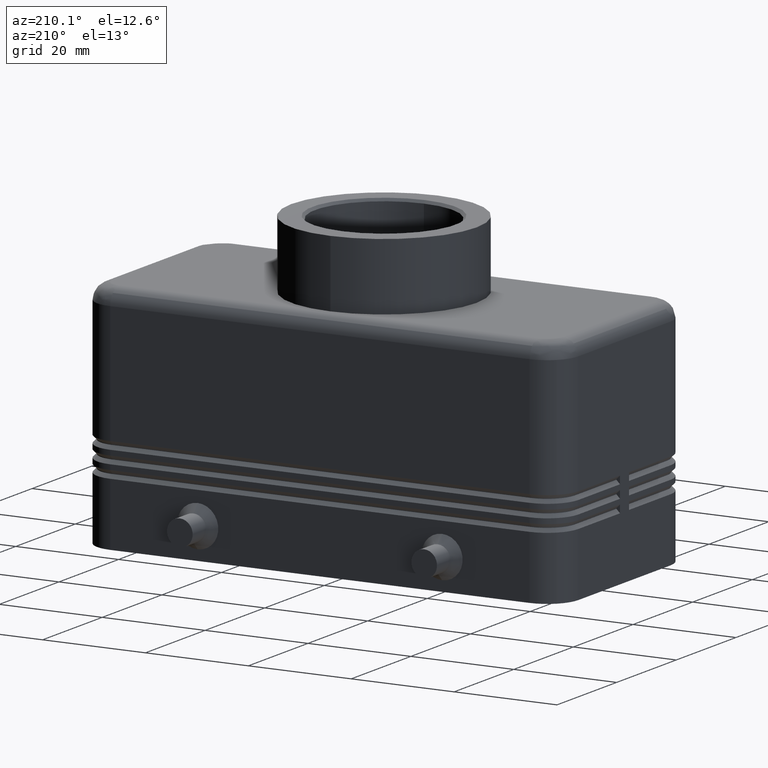
[diagram: clean part render]
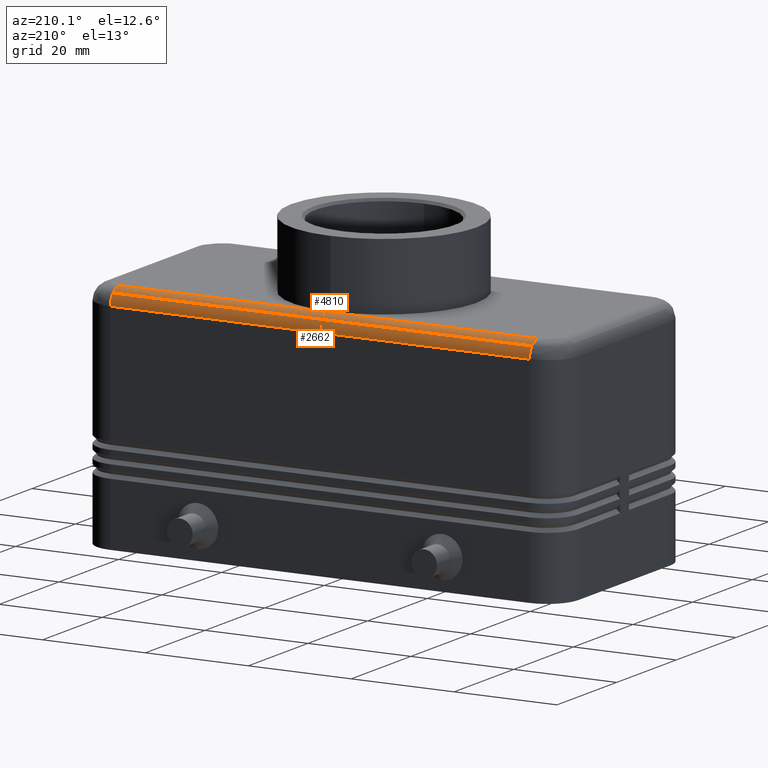
[diagram: same view with one multi-face feature highlighted, each face labeled with its STEP entity id]
A machine part, auxiliary view. The highlighted faces form ONE feature: a constant-radius fillet chain: 2 tangent blend faces with common blend radius 3 mm. The faces share edges in the B-rep.
Their STEP definitions:
[1] entity #2662 (Cylinder):
#1316=CARTESIAN_POINT('',(-40.749999999999993,21.500000000000000,42.000000000000014));
#1317=VERTEX_POINT('',#1316);
#2607=CARTESIAN_POINT('',(40.749999999999986,21.500000000000000,41.999999999999993));
#2608=VERTEX_POINT('',#2607);
#2625=CARTESIAN_POINT('',(23.374999999999993,18.500000000000000,41.999999999999993));
#2626=DIRECTION('',(-1.0,0.0,0.0));
#2627=DIRECTION('',(0.0,0.707106781186547,0.707106781186548));
#2628=AXIS2_PLACEMENT_3D('',#2625,#2626,#2627);
#2629=CYLINDRICAL_SURFACE('',#2628,3.000000000000000);
#2630=CARTESIAN_POINT('',(40.749999999999986,20.621320343559642,44.121320343559638));
#2631=VERTEX_POINT('',#2630);
#2632=CARTESIAN_POINT('',(-40.749999999999993,20.621320343559642,44.121320343559631));
#2633=VERTEX_POINT('',#2632);
#2634=CARTESIAN_POINT('',(40.749999999999986,20.621320343559642,44.121320343559638));
#2635=DIRECTION('',(-1.0,0.0,0.0));
#2636=VECTOR('',#2635,81.499999999999972);
#2637=LINE('',#2634,#2636);
#2638=EDGE_CURVE('',#2631,#2633,#2637,.T.);
#2639=ORIENTED_EDGE('',*,*,#2638,.F.);
#2640=CARTESIAN_POINT('',(40.749999999999986,18.500000000000000,41.999999999999993));
#2641=DIRECTION('',(1.0,0.0,0.0));
#2642=DIRECTION('',(0.0,1.0,0.0));
#2643=AXIS2_PLACEMENT_3D('',#2640,#2641,#2642);
#2644=CIRCLE('',#2643,3.000000000000000);
#2645=EDGE_CURVE('',#2608,#2631,#2644,.T.);
#2646=ORIENTED_EDGE('',*,*,#2645,.F.);
#2647=CARTESIAN_POINT('',(40.749999999999986,21.500000000000000,41.999999999999993));
#2648=DIRECTION('',(-1.0,0.0,0.0));
#2649=VECTOR('',#2648,81.499999999999972);
#2650=LINE('',#2647,#2649);
#2651=EDGE_CURVE('',#2608,#1317,#2650,.T.);
#2652=ORIENTED_EDGE('',*,*,#2651,.T.);
#2653=CARTESIAN_POINT('',(-40.749999999999993,18.500000000000000,42.000000000000014));
#2654=DIRECTION('',(-1.0,0.0,0.0));
#2655=DIRECTION('',(0.0,0.0,1.0));
#2656=AXIS2_PLACEMENT_3D('',#2653,#2654,#2655);
#2657=CIRCLE('',#2656,2.999999999999981);
#2658=EDGE_CURVE('',#2633,#1317,#2657,.T.);
#2659=ORIENTED_EDGE('',*,*,#2658,.F.);
#2660=EDGE_LOOP('',(#2639,#2646,#2652,#2659));
#2661=FACE_OUTER_BOUND('',#2660,.T.);
#2662=ADVANCED_FACE('',(#2661),#2629,.T.);
[2] entity #4810 (Cylinder):
#2630=CARTESIAN_POINT('',(40.749999999999986,20.621320343559642,44.121320343559638));
#2631=VERTEX_POINT('',#2630);
#2632=CARTESIAN_POINT('',(-40.749999999999993,20.621320343559642,44.121320343559631));
#2633=VERTEX_POINT('',#2632);
#2634=CARTESIAN_POINT('',(40.749999999999986,20.621320343559642,44.121320343559638));
#2635=DIRECTION('',(-1.0,0.0,0.0));
#2636=VECTOR('',#2635,81.499999999999972);
#2637=LINE('',#2634,#2636);
#2638=EDGE_CURVE('',#2631,#2633,#2637,.T.);
#3772=CARTESIAN_POINT('',(40.749999999999986,18.500000000000000,44.999999999999993));
#3773=VERTEX_POINT('',#3772);
#3781=CARTESIAN_POINT('',(-40.749999999999993,18.500000000000000,44.999999999999993));
#3782=VERTEX_POINT('',#3781);
#3783=CARTESIAN_POINT('',(-40.749999999999993,18.500000000000000,44.999999999999993));
#3784=DIRECTION('',(1.0,0.0,0.0));
#3785=VECTOR('',#3784,81.499999999999972);
#3786=LINE('',#3783,#3785);
#3787=EDGE_CURVE('',#3782,#3773,#3786,.T.);
#4702=CARTESIAN_POINT('',(-40.749999999999993,18.500000000000000,42.000000000000014));
#4703=DIRECTION('',(-1.0,0.0,0.0));
#4704=DIRECTION('',(0.0,0.0,1.0));
#4705=AXIS2_PLACEMENT_3D('',#4702,#4703,#4704);
#4706=CIRCLE('',#4705,2.999999999999981);
#4707=EDGE_CURVE('',#3782,#2633,#4706,.T.);
#4778=CARTESIAN_POINT('',(40.749999999999986,18.500000000000000,41.999999999999993));
#4779=DIRECTION('',(1.0,0.0,0.0));
#4780=DIRECTION('',(0.0,1.0,0.0));
#4781=AXIS2_PLACEMENT_3D('',#4778,#4779,#4780);
#4782=CIRCLE('',#4781,3.000000000000000);
#4783=EDGE_CURVE('',#2631,#3773,#4782,.T.);
#4799=CARTESIAN_POINT('',(23.374999999999993,18.500000000000000,41.999999999999993));
#4800=DIRECTION('',(-1.0,0.0,0.0));
#4801=DIRECTION('',(0.0,0.707106781186547,0.707106781186548));
#4802=AXIS2_PLACEMENT_3D('',#4799,#4800,#4801);
#4803=CYLINDRICAL_SURFACE('',#4802,3.000000000000000);
#4804=ORIENTED_EDGE('',*,*,#2638,.T.);
#4805=ORIENTED_EDGE('',*,*,#4707,.F.);
#4806=ORIENTED_EDGE('',*,*,#3787,.T.);
#4807=ORIENTED_EDGE('',*,*,#4783,.F.);
#4808=EDGE_LOOP('',(#4804,#4805,#4806,#4807));
#4809=FACE_OUTER_BOUND('',#4808,.T.);
#4810=ADVANCED_FACE('',(#4809),#4803,.T.);